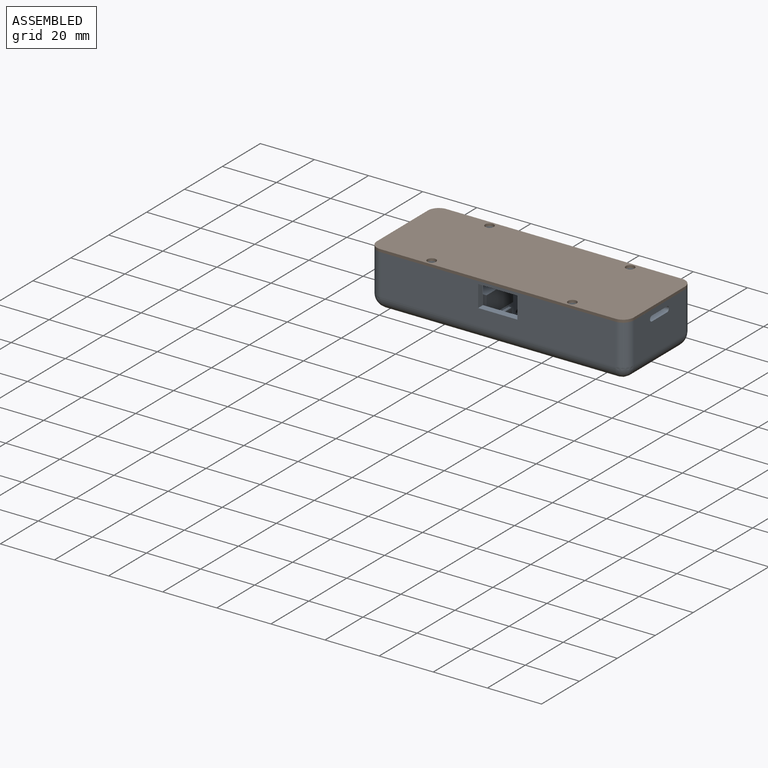
[diagram: assembled view]
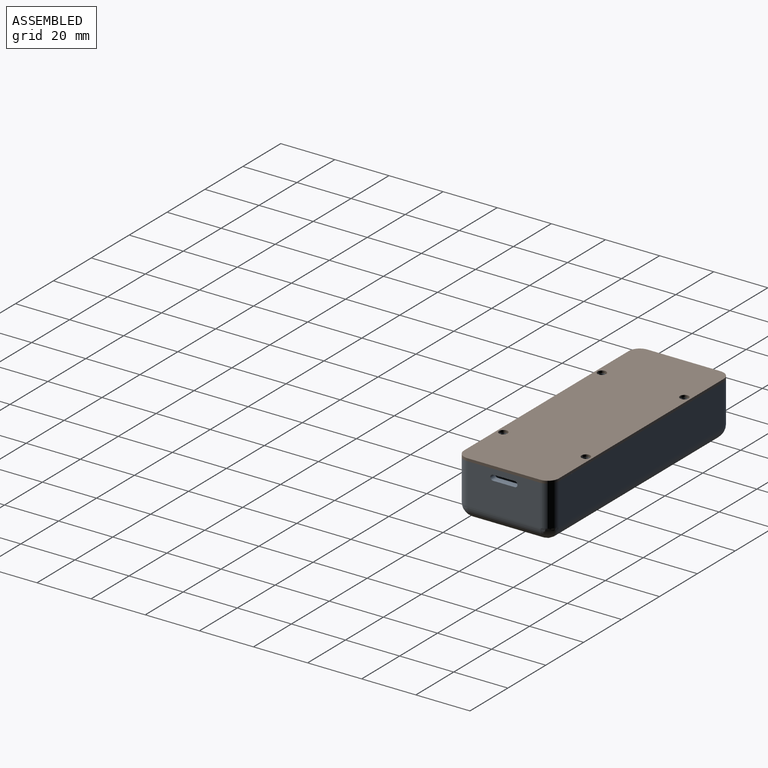
[diagram: assembled view, second angle]
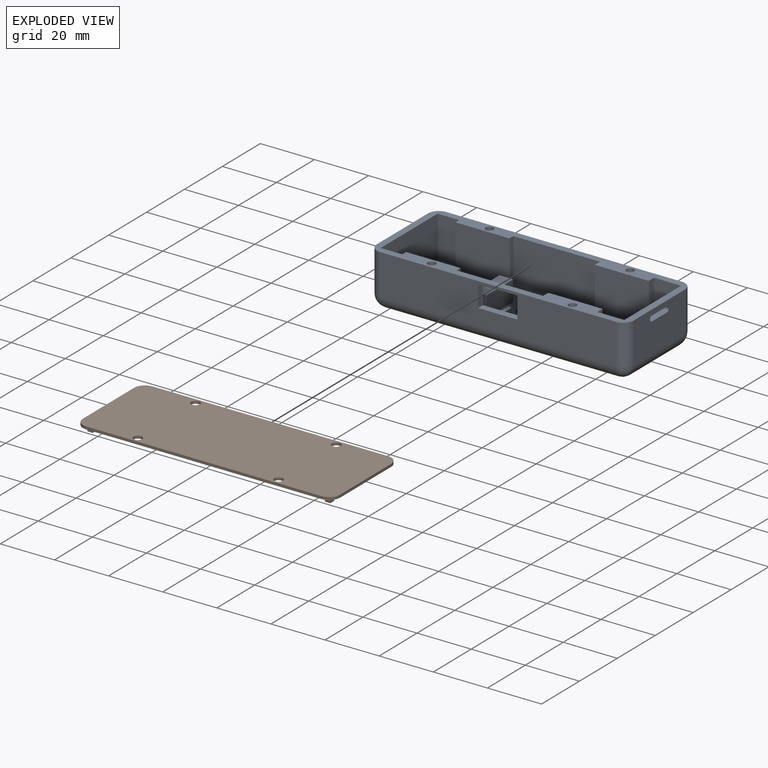
[diagram: exploded view]
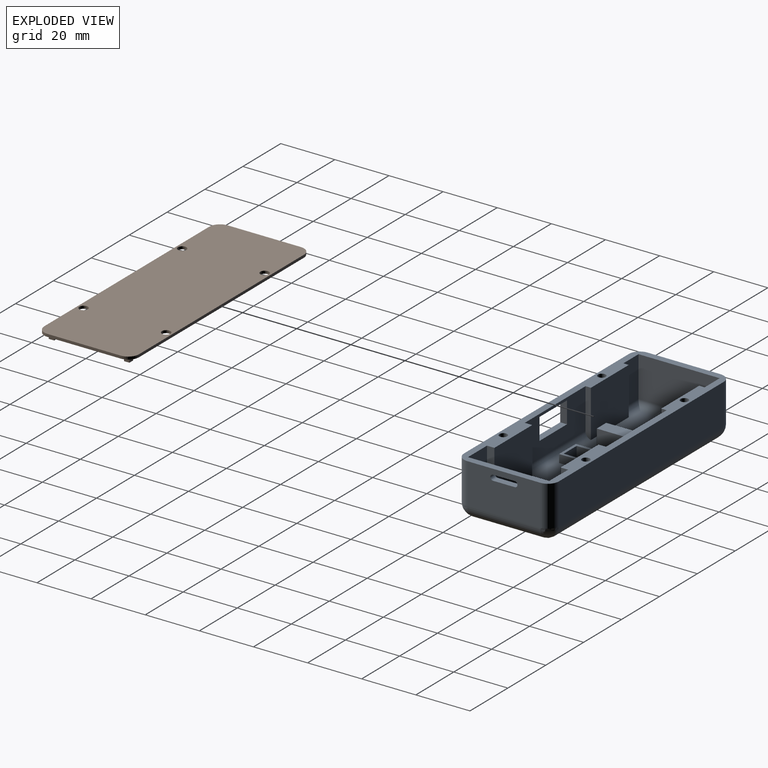
[diagram: exploded view, second angle]
ASSEMBLY  parts=2 mates=3
PART A: 83 faces, bbox 95x35x20 mm
  f0: plane 32x15mm, normal (0,1,0), area 364mm2, adj f14,f24,f39,f43,f79,f80,f81,f82
  f1: plane 87x15mm, normal (0,-1,0), area 1189mm2, adj f14,f17,f26,f28,f79,f80,f81,f82
  f2: plane 27x15mm, normal (-1,0,0), area 370mm2, adj f3,f14,f26,f32,f64,f65,f66
  f3: cylinder r=5mm len=27mm, axis (0,-1,0), area 180.2mm2, adj f2,f6,f15,f27,f33,f65,f66
  f4: plane 30x15mm, normal (1,0,0), area 415mm2, adj f5,f14,f19,f21,f22,f64,f65,f66
  f5: cylinder r=2.5mm len=4mm, axis (0,-1,0), area 12.1mm2, adj f4,f6,f10,f65
  f6: plane 89.33x25mm, normal (0,0,1), area 1928mm2, adj f3,f5,f8,f10,f22,f23,f24,f25
  f7: plane 15x10mm, normal (0,1,0), area 150mm2, adj f8,f14,f20,f45
  f8: cylinder r=2.5mm len=10mm, axis (1,0,0), area 35.7mm2, adj f6,f7,f25,f45
  f9: plane 15x10mm, normal (0,-1,0), area 150mm2, adj f14,f20,f23,f42
  f10: cylinder r=2.5mm len=60mm, axis (-1,0,0), area 163.6mm2, adj f5,f6,f11,f21,f34,f35,f36,f41
  f11: plane 32x15mm, normal (0,-1,0), area 480mm2, adj f10,f14,f36,f41
  f12: plane 27x15mm, normal (1,0,0), area 385.9mm2, adj f14,f18,f28,f30,f67,f68,f69,f70
  f13: plane 87x15mm, normal (0,1,0), area 1305mm2, adj f14,f16,f30,f32
  f14: plane 95x35mm, normal (0,0,1), area 774.8mm2, adj f0,f1,f2,f4,f7,f9,f11,f12
  f15: plane 85x25mm, normal (0,0,-1), area 2033mm2, adj f3,f16,f17,f18,f46,f47,f48,f49
  f16: cylinder r=5mm len=87mm, axis (-1,0,0), area 677.6mm2, adj f13,f15,f31,f33
  f17: cylinder r=5mm len=87mm, axis (1,0,0), area 677.6mm2, adj f1,f15,f27,f29
  f18: cylinder r=5mm len=27mm, axis (0,1,0), area 206.3mm2, adj f12,f15,f29,f31
  f19: plane 15x8mm, normal (0,1,0), area 120mm2, adj f4,f14,f24,f37
  f20: plane 30x15mm, normal (-1,0,0), area 430.9mm2, adj f7,f9,f14,f25,f67,f68,f69,f70
  f21: plane 15x8mm, normal (0,-1,0), area 120mm2, adj f4,f10,f14,f35
  f22: cylinder r=2.5mm len=16mm, axis (0,-1,0), area 59.3mm2, adj f4,f6,f24,f66
  f23: cylinder r=2.5mm len=10mm, axis (-1,0,0), area 35.7mm2, adj f6,f9,f25,f42
  f24: cylinder r=2.5mm len=60mm, axis (1,0,0), area 163.6mm2, adj f0,f6,f19,f22,f37,f38,f39,f43
  f25: cylinder r=2.5mm len=30mm, axis (0,1,0), area 110.7mm2, adj f6,f8,f20,f23
  f26: cylinder r=4mm len=15mm, axis (0,0,-1), area 94.2mm2, adj f1,f2,f14,f27
  f27: bspline ~6.16x5mm, area 32.1mm2, adj f3,f17,f26
  f28: cylinder r=4mm len=15mm, axis (0,0,1), area 94.2mm2, adj f1,f12,f14,f29
  f29: bspline ~6.16x5mm, area 32.1mm2, adj f17,f18,f28
  f30: cylinder r=4mm len=15mm, axis (0,0,-1), area 94.2mm2, adj f12,f13,f14,f31
  f31: bspline ~6.16x5mm, area 32.1mm2, adj f16,f18,f30
  f32: cylinder r=4mm len=15mm, axis (0,0,1), area 94.2mm2, adj f2,f13,f14,f33
  f33: bspline ~6.16x5mm, area 32.1mm2, adj f3,f16,f32
  f34: plane 20x17.45mm, normal (0,-1,0), area 349mm2, adj f10,f14,f35,f36
  f35: plane 17.45x2mm, normal (-1,0,0), area 33.7mm2, adj f10,f14,f21,f34
  f36: plane 17.45x2mm, normal (1,0,0), area 33.7mm2, adj f10,f11,f14,f34
  f37: plane 17.45x2mm, normal (-1,0,0), area 33.7mm2, adj f14,f19,f24,f38
  f38: plane 20x17.45mm, normal (0,1,0), area 349mm2, adj f14,f24,f37,f39
  f39: plane 17.45x2mm, normal (1,0,0), area 33.7mm2, adj f0,f14,f24,f38
  f40: plane 20x17.5mm, normal (0,-1,0), area 350mm2, adj f6,f14,f41,f42
  f41: plane 17.5x2.75mm, normal (-1,0,0), area 46.8mm2, adj f6,f10,f11,f14,f40
  f42: plane 17.5x2.75mm, normal (1,0,0), area 46.8mm2, adj f6,f9,f14,f23,f40
  f43: plane 17.5x2.75mm, normal (-1,0,0), area 46.8mm2, adj f0,f6,f14,f24,f44
  f44: plane 20x17.5mm, normal (0,1,0), area 350mm2, adj f6,f14,f43,f45
  f45: plane 17.5x2.75mm, normal (1,0,0), area 46.8mm2, adj f6,f7,f8,f14,f44
  f46: plane 6.8x2.5mm, normal (0,-1,0), area 17mm2, adj f6,f15,f47,f48
  f47: plane 8.7x5.5mm, normal (-1,0,0), area 45.3mm2, adj f6,f15,f46,f49,f55,f58
  f48: plane 8.7x5.5mm, normal (1,0,0), area 45.3mm2, adj f6,f15,f46,f49,f56,f58
  f49: plane 6.8x5.5mm, normal (0,1,0), area 37.4mm2, adj f15,f47,f48,f58
  f50: cylinder r=3.55mm len=7.1mm, axis (0,0,1), area 33.5mm2, adj f15,f52
  f51: cylinder r=5.1mm len=10.2mm, axis (0,0,1), area 32mm2, adj f6,f52
  f52: plane 10.2x10.2mm, normal (0,0,1), area 42.1mm2, adj f50,f51
  f53: plane 8.8x3mm, normal (0,-1,0), area 26.4mm2, adj f6,f54,f57,f58
  f54: plane 9.7x3mm, normal (1,0,0), area 29.1mm2, adj f6,f53,f55,f58
  f55: plane 3x1mm, normal (0,1,0), area 3mm2, adj f6,f47,f54,f58
  f56: plane 3x1mm, normal (0,1,0), area 3mm2, adj f6,f48,f57,f58
  f57: plane 9.7x3mm, normal (-1,0,0), area 29.1mm2, adj f6,f53,f56,f58
  f58: plane 9.7x8.8mm, normal (0,0,1), area 26.2mm2, adj f47,f48,f49,f53,f54,f55,f56,f57
  f59: plane 14x7.6mm, normal (-1,0,0), area 106.4mm2, adj f6,f60,f62,f63
  f60: plane 7.6x5mm, normal (0,-1,0), area 38mm2, adj f6,f59,f61,f63
  f61: plane 14x7.6mm, normal (1,0,0), area 106.4mm2, adj f6,f60,f62,f63
  f62: plane 7.6x5mm, normal (0,1,0), area 38mm2, adj f6,f59,f61,f63
  f63: plane 14x5mm, normal (0,0,1), area 70mm2, adj f59,f60,f61,f62
  f64: plane 10x2.5mm, normal (0,0,-1), area 25mm2, adj f2,f4,f65,f66
  f65: plane 6x5mm, normal (0,-1,0), area 15.8mm2, adj f2,f3,f4,f5,f6,f64
  f66: plane 6x5mm, normal (0,1,0), area 15.8mm2, adj f2,f3,f4,f6,f22,f64
  f67: plane 8x2.5mm, normal (0,0,-1), area 20mm2, adj f12,f20,f68,f70
  f68: cylinder r=1mm len=2.5mm, axis (1,0,0), area 7.7mm2, adj f12,f20,f67,f69
  f69: plane 8.06x2.5mm, normal (0,0,1), area 20.1mm2, adj f12,f20,f68,f70
  f70: cylinder r=1mm len=2.5mm, axis (1,0,0), area 7.9mm2, adj f12,f20,f67,f69
  f71: cylinder r=1.45mm len=10mm, axis (0,0,1), area 91.1mm2, adj f14,f72
  f72: plane 2.9x2.9mm, normal (0,0,1), area 6.6mm2, adj f71
  f73: cylinder r=1.45mm len=10mm, axis (0,0,1), area 91.1mm2, adj f14,f74
  f74: plane 2.9x2.9mm, normal (0,0,1), area 6.6mm2, adj f73
  f75: cylinder r=1.45mm len=10mm, axis (0,0,1), area 91.1mm2, adj f14,f76
  f76: plane 2.9x2.9mm, normal (0,0,1), area 6.6mm2, adj f75
  f77: cylinder r=1.45mm len=10mm, axis (0,0,1), area 91.1mm2, adj f14,f78
  f78: plane 2.9x2.9mm, normal (0,0,1), area 6.6mm2, adj f77
  f79: plane 8x2.5mm, normal (-1,0,0), area 20mm2, adj f0,f1,f80,f81
  f80: plane 14.5x2.5mm, normal (0,0,1), area 36.2mm2, adj f0,f1,f79,f82
  f81: plane 14.5x2.5mm, normal (0,0,-1), area 36.2mm2, adj f0,f1,f79,f82
  f82: plane 8x2.5mm, normal (1,0,0), area 20mm2, adj f0,f1,f80,f81
PART B: 34 faces, bbox 95x35x3 mm
  f0: plane 95x35mm, normal (0,0,1), area 3263.1mm2, adj f1,f2,f3,f4,f5,f6,f7,f8
  f1: cylinder r=4mm len=4mm, axis (0,0,-1), area 6.3mm2, adj f0,f2,f8,f9
  f2: plane 87x1mm, normal (0,-1,0), area 87mm2, adj f0,f1,f3,f9
  f3: cylinder r=4mm len=4mm, axis (0,0,-1), area 6.3mm2, adj f0,f2,f4,f9
  f4: plane 27x1mm, normal (1,0,0), area 27mm2, adj f0,f3,f5,f9
  f5: cylinder r=4mm len=4mm, axis (0,0,-1), area 6.3mm2, adj f0,f4,f6,f9
  f6: plane 87x1mm, normal (0,1,0), area 87mm2, adj f0,f5,f7,f9
  f7: cylinder r=4mm len=4mm, axis (0,0,-1), area 6.3mm2, adj f0,f6,f8,f9
  f8: plane 27x1mm, normal (-1,0,0), area 27mm2, adj f0,f1,f7,f9
  f9: plane 95x35mm, normal (0,0,-1), area 3279.1mm2, adj f1,f2,f3,f4,f5,f6,f7,f8
  f10: plane 2x2mm, normal (-1,0,0), area 4mm2, adj f0,f11,f13,f14
  f11: plane 2x2mm, normal (0,-1,0), area 4mm2, adj f0,f10,f12,f14
  f12: plane 2x2mm, normal (1,0,0), area 4mm2, adj f0,f11,f13,f14
  f13: plane 2x2mm, normal (0,1,0), area 4mm2, adj f0,f10,f12,f14
  f14: plane 2x2mm, normal (0,0,1), area 4mm2, adj f10,f11,f12,f13
  f15: plane 2x2mm, normal (0,1,0), area 4mm2, adj f0,f16,f18,f19
  f16: plane 2x2mm, normal (-1,0,0), area 4mm2, adj f0,f15,f17,f19
  f17: plane 2x2mm, normal (0,-1,0), area 4mm2, adj f0,f16,f18,f19
  f18: plane 2x2mm, normal (1,0,0), area 4mm2, adj f0,f15,f17,f19
  f19: plane 2x2mm, normal (0,0,1), area 4mm2, adj f15,f16,f17,f18
  f20: plane 2x2mm, normal (1,0,0), area 4mm2, adj f0,f21,f23,f24
  f21: plane 2x2mm, normal (0,1,0), area 4mm2, adj f0,f20,f22,f24
  f22: plane 2x2mm, normal (-1,0,0), area 4mm2, adj f0,f21,f23,f24
  f23: plane 2x2mm, normal (0,-1,0), area 4mm2, adj f0,f20,f22,f24
  f24: plane 2x2mm, normal (0,0,1), area 4mm2, adj f20,f21,f22,f23
  f25: plane 2x2mm, normal (0,-1,0), area 4mm2, adj f0,f26,f28,f29
  f26: plane 2x2mm, normal (1,0,0), area 4mm2, adj f0,f25,f27,f29
  f27: plane 2x2mm, normal (0,1,0), area 4mm2, adj f0,f26,f28,f29
  f28: plane 2x2mm, normal (-1,0,0), area 4mm2, adj f0,f25,f27,f29
  f29: plane 2x2mm, normal (0,0,1), area 4mm2, adj f25,f26,f27,f28
  f30: cylinder r=1.6mm len=3.2mm, axis (0,0,1), area 10.1mm2, adj f0,f9
  f31: cylinder r=1.6mm len=3.2mm, axis (0,0,1), area 10.1mm2, adj f0,f9
  f32: cylinder r=1.6mm len=3.2mm, axis (0,0,1), area 10.1mm2, adj f0,f9
  f33: cylinder r=1.6mm len=3.2mm, axis (0,0,1), area 10.1mm2, adj f0,f9
PLACE A t=(-45.64,17.69,38.24)mm
PLACE B rot(axis=(0,1,0),180deg) t=(63.93,16.78,59.24)mm
MATE planar B.f23 <-> A.f19  axis (0,-1,0) through (-99.6,1.88,57.24)mm
MATE parallel B.f0 <-> A.f14  axis (0,0,-1) through (-55.7,16.78,58.24)mm
MATE slider A.f73 <-> B.f32  axis (0,0,1) through (-81.7,1.53,58.24)mm
